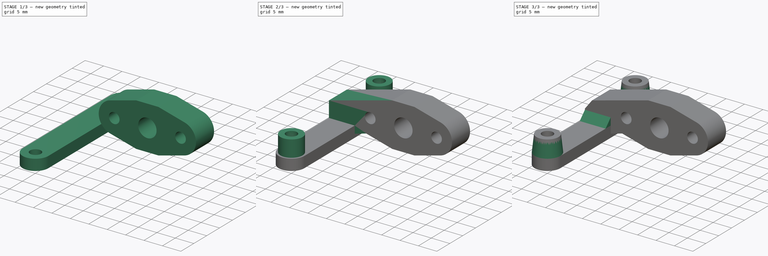
[diagram: build sequence overview — one tinted view per stage of 3, left to right]
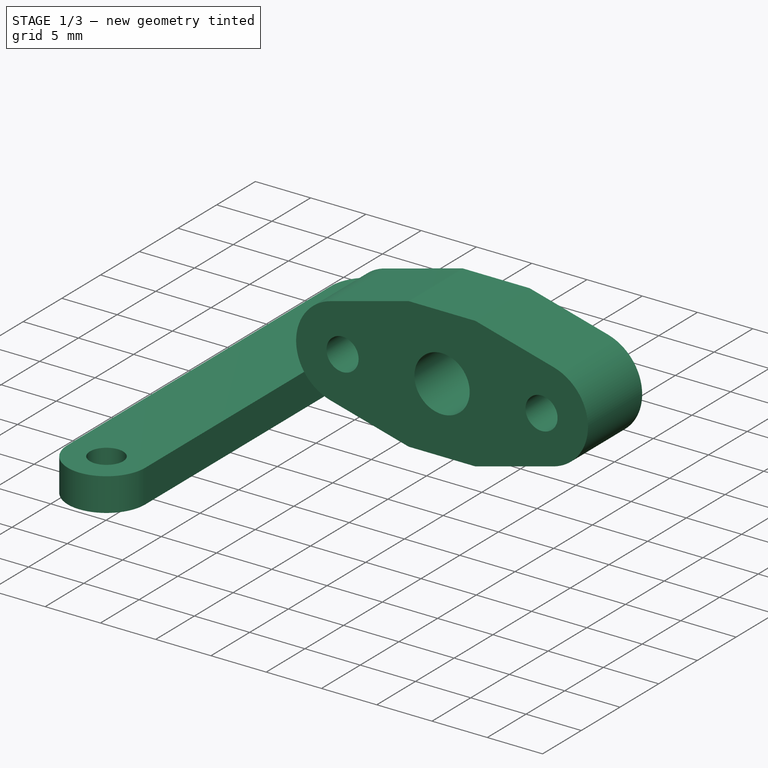
[diagram: stage 1 of 3 — iso view after this stage's code; geometry added in this stage tinted green]
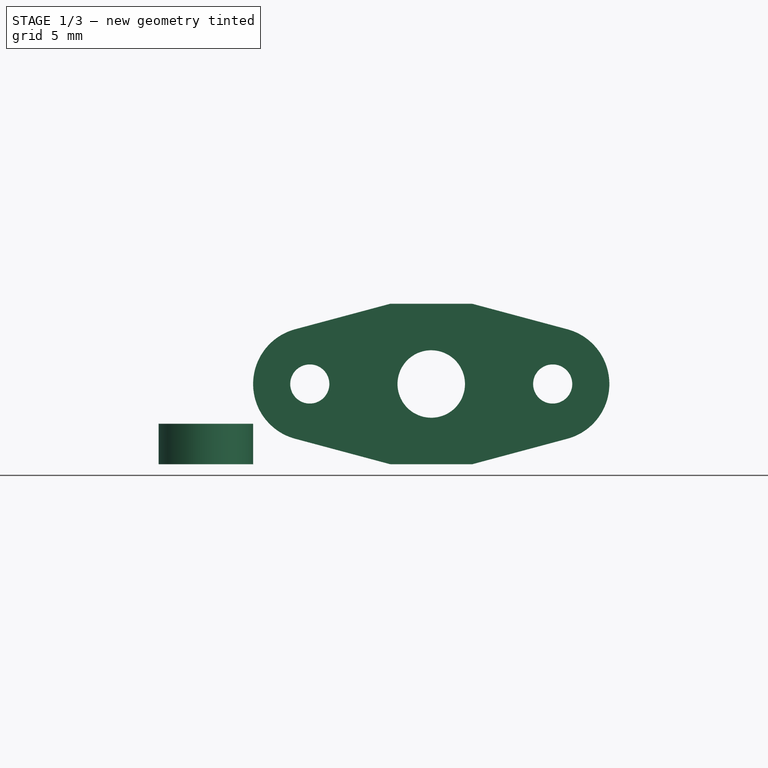
[diagram: stage 1 of 3 — front view after this stage's code; geometry added in this stage tinted green]
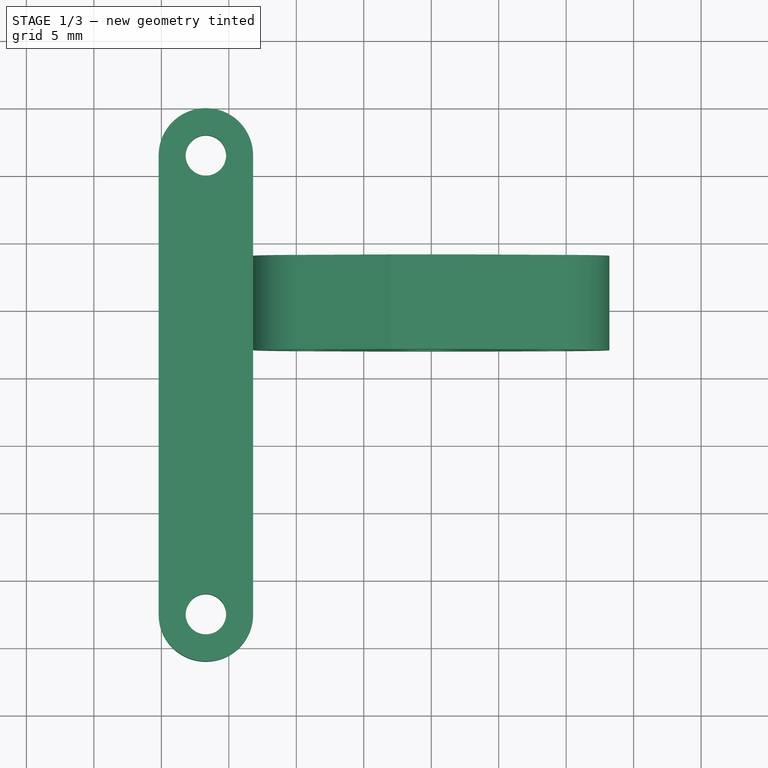
[diagram: stage 1 of 3 — top view after this stage's code; geometry added in this stage tinted green]
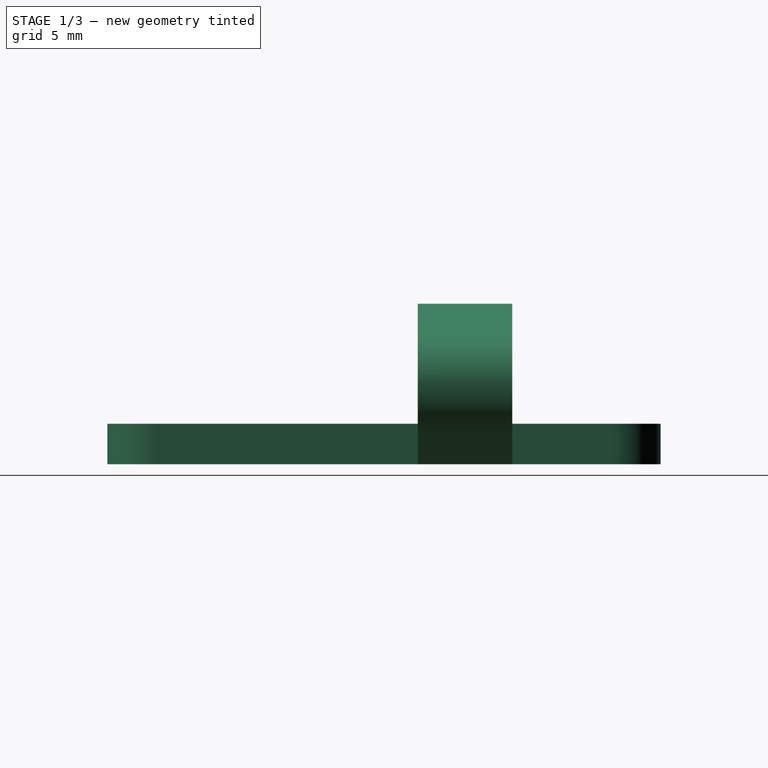
[diagram: stage 1 of 3 — right view after this stage's code; geometry added in this stage tinted green]
FCSTD DOCUMENT  (FreeCAD 2022.111R28429 (Git))
Label: BLTouch_Mount_2
License: All rights reserved
LicenseURL: http://en.wikipedia.org/wiki/All_rights_reserved
objects: Sketcher::SketchObject×4, PartDesign::Pad×4, PartDesign::Chamfer×2, PartDesign::Body×1
note: 23 computed .brp shape members not serialized (recipe doc carries the construction recipe); baked Part::Feature solids carry a one-line shape summary decoded from their .brp

FEATURE [Sketcher::SketchObject] Sketch
  FullyConstrained = true
  MapMode = 5
  Placement = pos=(0,0,0) rot=(1,0,0;1.5708rad)
  Support = -> [XZ_Plane]
  TreeRank = 0
  sketch-geometry (11):
    g0: Circle CenterX=-9 CenterY=0 CenterZ=0 NormalX=0 NormalY=0 NormalZ=1 AngleXU=0 Radius=1.45
    g1: Circle CenterX=0 CenterY=0 CenterZ=0 NormalX=0 NormalY=0 NormalZ=1 AngleXU=0 Radius=2.5
    g2: Circle CenterX=9 CenterY=0 CenterZ=0 NormalX=0 NormalY=0 NormalZ=1 AngleXU=0 Radius=1.45
    g3: ArcOfCircle CenterX=9 CenterY=0 CenterZ=0 NormalX=0 NormalY=0 NormalZ=1 AngleXU=0 Radius=4.2 StartAngle=4.97419 EndAngle=7.59218
    g4: ArcOfCircle CenterX=-9 CenterY=0 CenterZ=0 NormalX=0 NormalY=0 NormalZ=1 AngleXU=0 Radius=4.2 StartAngle=1.8326 EndAngle=4.45059
    g5: LineSegment StartX=-10.087 StartY=4.05689 StartZ=0 EndX=-3.02185 EndY=5.95 EndZ=0
    g6: LineSegment StartX=-3.02185 StartY=5.95 StartZ=0 EndX=3.02185 EndY=5.95 EndZ=0
    g7: LineSegment StartX=3.02185 StartY=5.95 StartZ=0 EndX=10.087 EndY=4.05689 EndZ=0
    g8: LineSegment StartX=-10.087 StartY=-4.05689 StartZ=0 EndX=-3.02185 EndY=-5.95 EndZ=0
    g9: LineSegment StartX=-3.02185 StartY=-5.95 StartZ=0 EndX=3.02185 EndY=-5.95 EndZ=0
    g10: LineSegment StartX=3.02185 StartY=-5.95 StartZ=0 EndX=10.087 EndY=-4.05689 EndZ=0
  constraints (25):
    c: Coincident(g1,g-1)
    c: Diameter(g0) = 2.9
    c: Equal(g0,g2)
    c: Diameter(g1) = 5
    c: DistanceX(g1,g2) = 9
    c: Symmetric(g2,g0,g-2)
    c: Coincident(g3,g2)
    c: Coincident(g4,g0)
    c: Diameter(g4) = 8.4
    c: Equal(g4,g3)
    c: Coincident(g7,g6)
    c: Coincident(g8,g4)
    c: Coincident(g9,g8)
    c: Horizontal(g9)
    c: Coincident(g10,g9)
    c: Tangent(g5,g4) = 1.5708
    c: Symmetric(g4,g4,g-1)
    c: Coincident(g5,g6)
    c: Symmetric(g5,g6,g-2)
    c: Symmetric(g5,g8,g-1)
    c: Angle(g5) = 0.261799
    c: Equal(g6,g9)
    c: DistanceY(g9,g6) = 11.9
    c: Tangent(g7,g3) = 1.5708
    c: Tangent(g10,g3) = -1.5708
FEATURE [PartDesign::Pad] Pad
  ClaimChildren = false
  Direction = (1,1,1)
  Fit = 0
  FitJoin = 0
  InnerFit = 0
  InnerFitJoin = 0
  InnerTaperAngle = 0
  InnerTaperAngleRev = 0
  Length = 3
  Length2 = 4
  Linearize = true
  NewSolid = false
  Placement = pos=(0,0,0) rot=(1,0,0;1.5708rad)
  Profile = -> Sketch
  Refine = true
  Suppress = false
  TreeRank = 0
  Type = 4
  _ProfileBasedVersion = 1
FEATURE [Sketcher::SketchObject] Sketch001
  FullyConstrained = false
  MapMode = 5
  Placement = pos=(0,0,-5.95) rot=(1,0,0;3.14159rad)
  Support = -> [Pad]
  TreeRank = 0
  sketch-geometry (7):
    g0: Circle CenterX=-16.7 CenterY=-11.5 CenterZ=0 NormalX=0 NormalY=0 NormalZ=1 AngleXU=0 Radius=1.5
    g1: Circle CenterX=-16.7 CenterY=22.5 CenterZ=0 NormalX=0 NormalY=0 NormalZ=1 AngleXU=0 Radius=1.5
    g2: GeomPoint [constr] X=-16.7 Y=-10 Z=0
    g3: ArcOfCircle CenterX=-16.7 CenterY=22.5 CenterZ=0 NormalX=0 NormalY=0 NormalZ=1 AngleXU=0 Radius=3.5 StartAngle=6.28319 EndAngle=9.42478
    g4: ArcOfCircle CenterX=-16.7 CenterY=-11.5 CenterZ=0 NormalX=0 NormalY=0 NormalZ=1 AngleXU=0 Radius=3.5 StartAngle=3.1416 EndAngle=6.28318
    g5: LineSegment StartX=-13.2 StartY=22.5 StartZ=0 EndX=-13.2 EndY=-11.5 EndZ=0
    g6: LineSegment StartX=-20.2 StartY=22.5 StartZ=0 EndX=-20.2 EndY=-11.5 EndZ=0
  constraints (18):
    c: Vertical(g1,g0)
    c: Diameter(g1) = 3
    c: Equal(g1,g0)
    c: PointOnObject(g2,g0)
    c: Vertical(g2,g0)
    c: DistanceY(g0,g1) = 34
    c: Coincident(g3,g1)
    c: Coincident(g4,g0)
    c: Diameter(g4) = 7
    c: Equal(g4,g3)
    c: Coincident(g5,g3)
    c: Coincident(g5,g4)
    c: Vertical(g5)
    c: Tangent(g5,g4)
    c: Coincident(g6,g4)
    c: Vertical(g6)
    c: Tangent(g6,g3) = -1.5708
    c: DistanceY(g2,g-1) = 10
FEATURE [PartDesign::Pad] Pad001
  BaseFeature = -> Pad
  ClaimChildren = false
  Direction = (1,1,1)
  Fit = 0
  FitJoin = 0
  InnerFit = 0
  InnerFitJoin = 0
  InnerTaperAngle = 0
  InnerTaperAngleRev = 0
  Length = 3
  Length2 = 100
  Linearize = true
  NewSolid = false
  Placement = pos=(0,0,0) rot=(1,0,0;1.5708rad)
  Profile = -> Sketch001
  Refine = true
  Reversed = true
  Suppress = false
  TreeRank = 0
  Type = 0
  _ProfileBasedVersion = 1
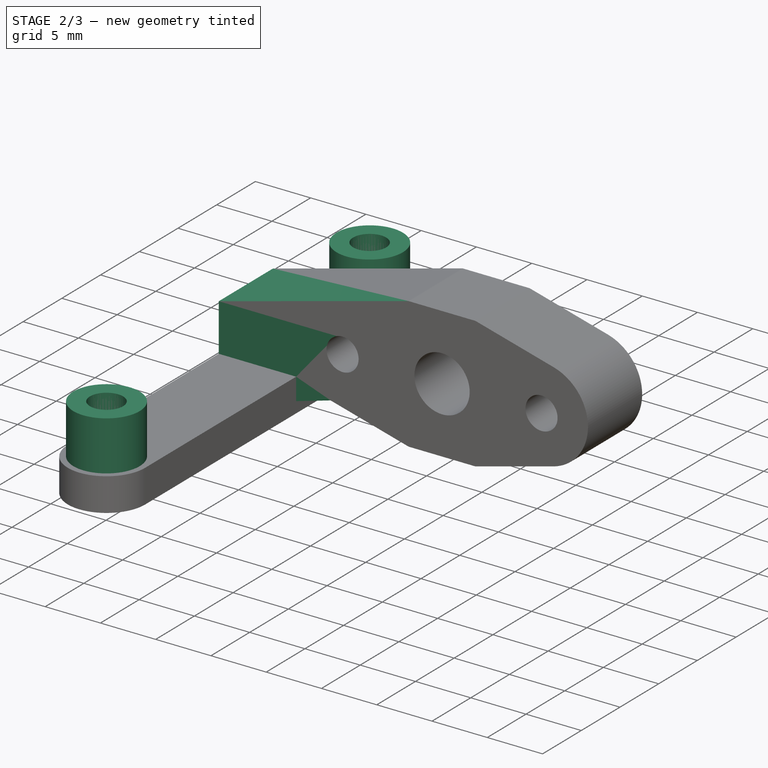
[diagram: stage 2 of 3 — iso view after this stage's code; geometry added in this stage tinted green]
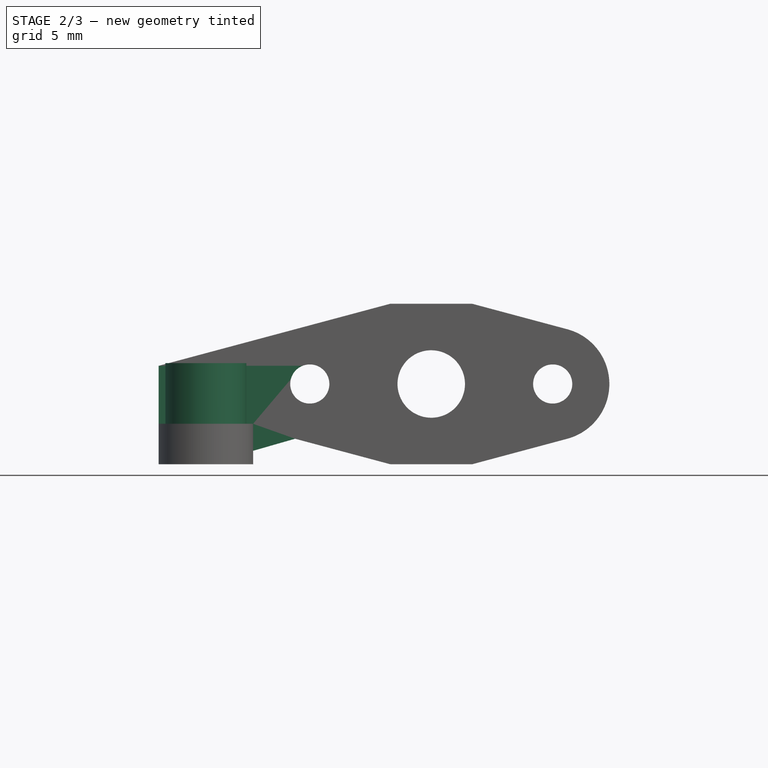
[diagram: stage 2 of 3 — front view after this stage's code; geometry added in this stage tinted green]
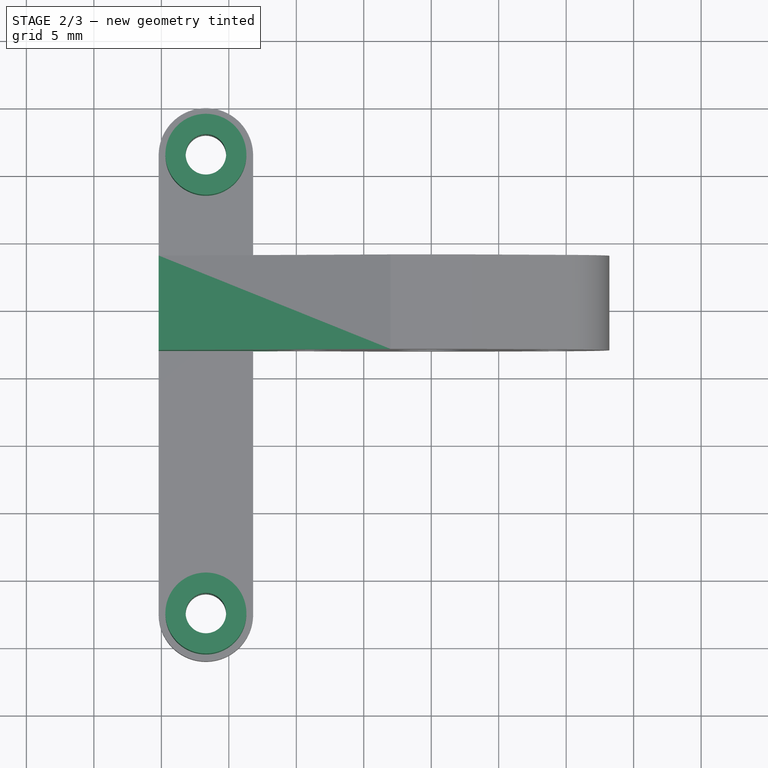
[diagram: stage 2 of 3 — top view after this stage's code; geometry added in this stage tinted green]
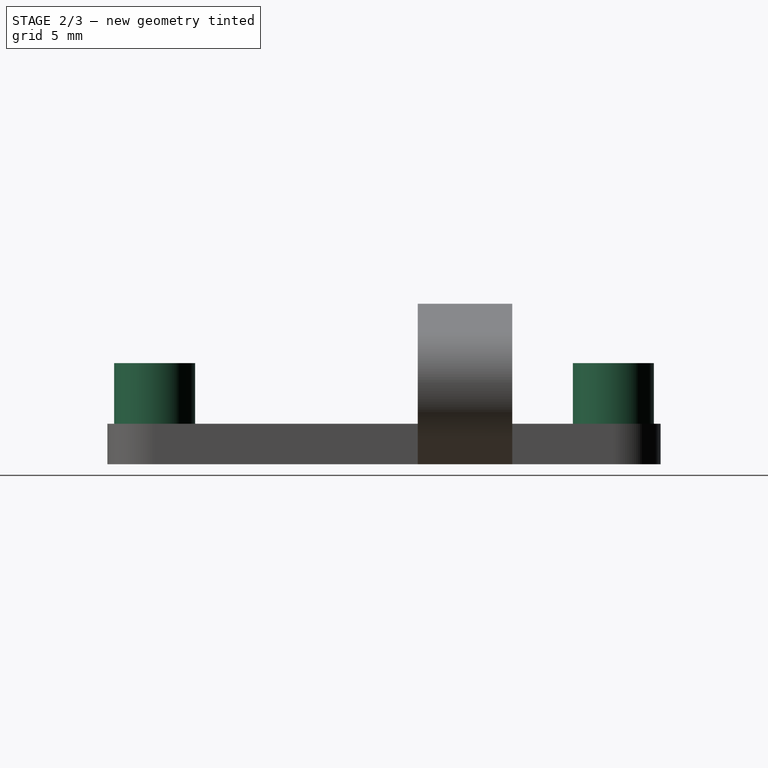
[diagram: stage 2 of 3 — right view after this stage's code; geometry added in this stage tinted green]
FEATURE [Sketcher::SketchObject] Sketch002
  ExternalGeometry = -> [Pad001]
  FullyConstrained = true
  MapMode = 5
  Placement = pos=(0,0,-2.95) rot=(0,0,1;3.14159rad)
  Support = -> [Pad001]
  TreeRank = 0
  sketch-geometry (4):
    g0: Circle CenterX=16.7 CenterY=22.5 CenterZ=0 NormalX=0 NormalY=0 NormalZ=1 AngleXU=0 Radius=3
    g1: Circle CenterX=16.7 CenterY=22.5 CenterZ=0 NormalX=0 NormalY=0 NormalZ=1 AngleXU=0 Radius=1.5
    g2: Circle CenterX=16.7 CenterY=-11.5 CenterZ=0 NormalX=0 NormalY=0 NormalZ=1 AngleXU=0 Radius=1.5
    g3: Circle CenterX=16.7 CenterY=-11.5 CenterZ=0 NormalX=0 NormalY=0 NormalZ=1 AngleXU=0 Radius=3
  constraints (8):
    c: Coincident(g0,g-3)
    c: Coincident(g1,g0)
    c: Equal(g2,g-4)
    c: Equal(g-4,g1)
    c: Diameter(g0) = 6
    c: Coincident(g3,g2)
    c: Equal(g3,g0)
    c: Coincident(g2,g-5)
FEATURE [PartDesign::Pad] Pad002
  BaseFeature = -> Pad001
  ClaimChildren = false
  Direction = (1,1,1)
  Fit = 0
  FitJoin = 0
  InnerFit = 0
  InnerFitJoin = 0
  InnerTaperAngle = 0
  InnerTaperAngleRev = 0
  Length = 4.5
  Length2 = 100
  Linearize = true
  NewSolid = false
  Placement = pos=(0,0,0) rot=(1,0,0;1.5708rad)
  Profile = -> Sketch002
  Refine = true
  Suppress = false
  TreeRank = 0
  Type = 0
  _ProfileBasedVersion = 1
FEATURE [Sketcher::SketchObject] Sketch003
  ExternalGeometry = -> [Pad002]
  FullyConstrained = true
  MapMode = 5
  Placement = pos=(0,-3,-7e-16) rot=(1,0,0;1.5708rad)
  Support = -> [Pad002]
  TreeRank = 0
  sketch-geometry (7):
    g0: LineSegment StartX=-20.2 StartY=1.34713 StartZ=0 EndX=-10.087 EndY=4.05689 EndZ=0
    g1: LineSegment StartX=-10.087 StartY=4.05689 StartZ=0 EndX=-12.4293 EndY=0 EndZ=0
    g2: LineSegment StartX=-12.4293 StartY=0 StartZ=0 EndX=-10.087 EndY=-4.05689 EndZ=0
    g3: GeomPoint [constr] X=-16.7 Y=-5.95 Z=0
    g4: LineSegment StartX=-16.7 StartY=-5.95 StartZ=0 EndX=-10.087 EndY=-4.05689 EndZ=0
    g5: LineSegment StartX=-16.7 StartY=-5.95 StartZ=0 EndX=-20.2 EndY=-5.95 EndZ=0
    g6: LineSegment StartX=-20.2 StartY=-5.95 StartZ=0 EndX=-20.2 EndY=1.34713 EndZ=0
  constraints (14):
    c: Coincident(g2,g1)
    c: Tangent(g0,g-4) = 1.5708
    c: Angle(g2) = -1.0472
    c: PointOnObject(g1,g-1)
    c: Coincident(g1,g0)
    c: Coincident(g4,g2)
    c: Coincident(g-4,g2)
    c: Coincident(g5,g4)
    c: Coincident(g5,g-6)
    c: Coincident(g6,g5)
    c: Vertical(g6)
    c: Coincident(g6,g0)
    c: Coincident(g4,g3)
    c: Symmetric(g-6,g5,g4)
FEATURE [PartDesign::Pad] Pad003
  BaseFeature = -> Pad002
  ClaimChildren = false
  Direction = (1,1,1)
  Fit = 0
  FitJoin = 0
  InnerFit = 0
  InnerFitJoin = 0
  InnerTaperAngle = 0
  InnerTaperAngleRev = 0
  Length = 7
  Length2 = 100
  Linearize = true
  NewSolid = false
  Placement = pos=(0,0,0) rot=(1,0,0;1.5708rad)
  Profile = -> Sketch003
  Refine = true
  Reversed = true
  Suppress = false
  TreeRank = 0
  Type = 0
  _ProfileBasedVersion = 1
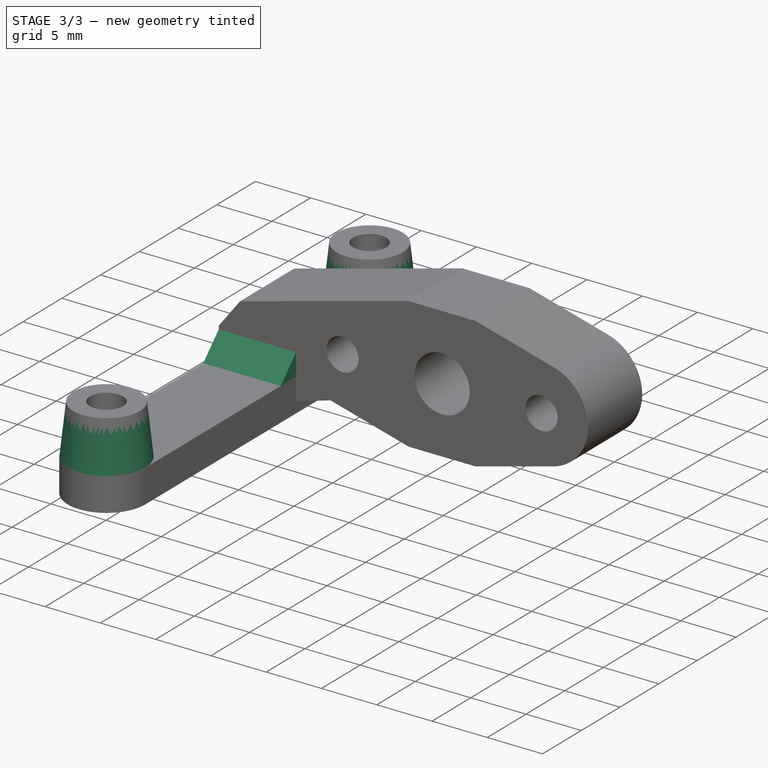
[diagram: stage 3 of 3 — iso view after this stage's code; geometry added in this stage tinted green]
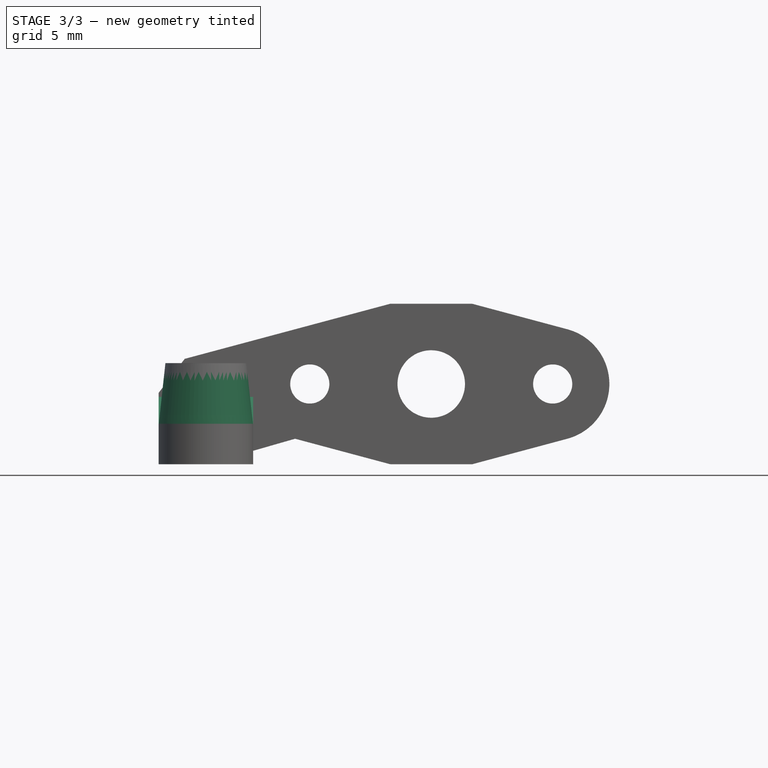
[diagram: stage 3 of 3 — front view after this stage's code; geometry added in this stage tinted green]
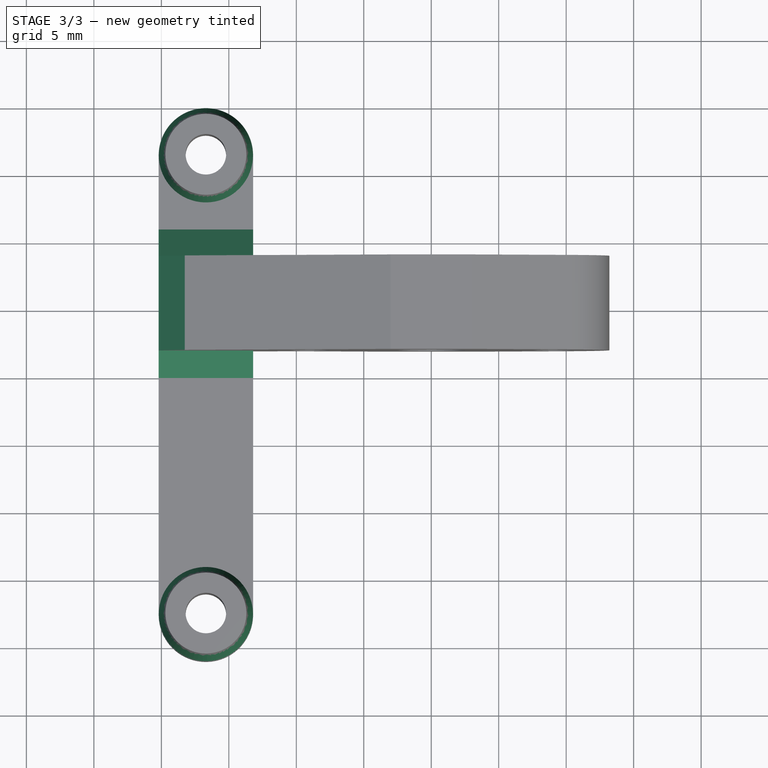
[diagram: stage 3 of 3 — top view after this stage's code; geometry added in this stage tinted green]
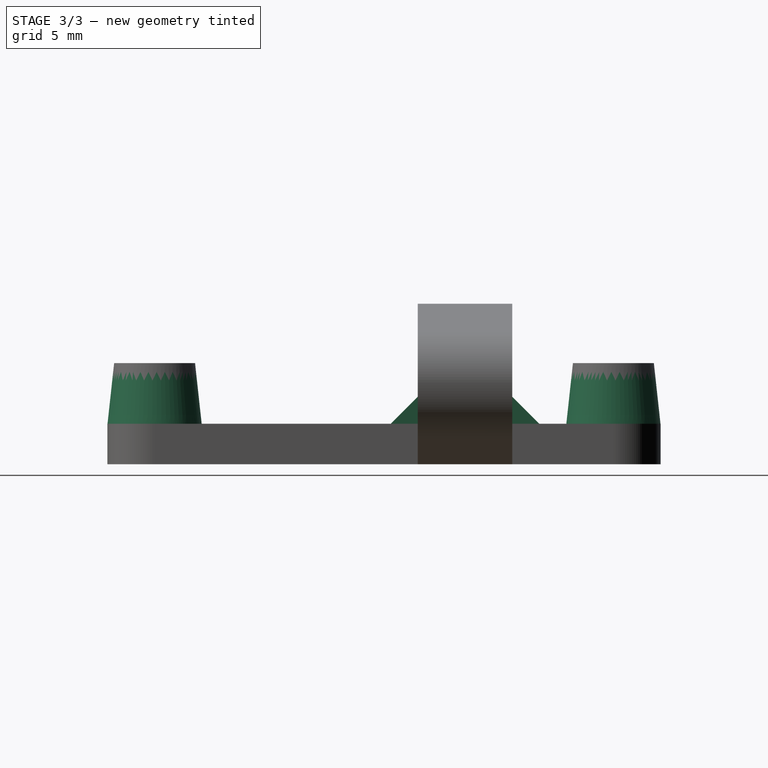
[diagram: stage 3 of 3 — right view after this stage's code; geometry added in this stage tinted green]
FEATURE [PartDesign::Chamfer] Chamfer
  Angle = 45
  Base = -> Pad003 [Edge13,Edge18,Edge55]
  BaseFeature = -> Pad003
  ChamferType = 0
  FlipDirection = false
  NewSolid = false
  Placement = pos=(0,0,0) rot=(1,0,0;1.5708rad)
  Refine = true
  Size = 2
  Size2 = 1
  SupportTransform = false
  Suppress = false
  TreeRank = 0
FEATURE [PartDesign::Chamfer] Chamfer001
  Angle = 80
  Base = -> Chamfer [Edge44,Edge16]
  BaseFeature = -> Chamfer
  ChamferType = 1
  FlipDirection = false
  NewSolid = false
  Placement = pos=(0,0,0) rot=(1,0,0;1.5708rad)
  Refine = true
  Size = 0.49
  Size2 = 4.49
  SupportTransform = false
  Suppress = false
  TreeRank = 0
FEATURE [PartDesign::Body] Body  label="BLTouch_Mount"
  AutoGroupSolids = false
  ExportMode = 0
  Group = -> [Sketch,Pad,Sketch001,Pad001,Sketch002,Pad002,Sketch003,Pad003,Chamfer,Chamfer001]
  Origin = -> Origin
  Tip = -> Chamfer001
  TreeRank = 0
  _ExportChildren = -> [Pad,Pad001,Pad002,Pad003,Chamfer,Chamfer001]
  _GroupVersion = 1
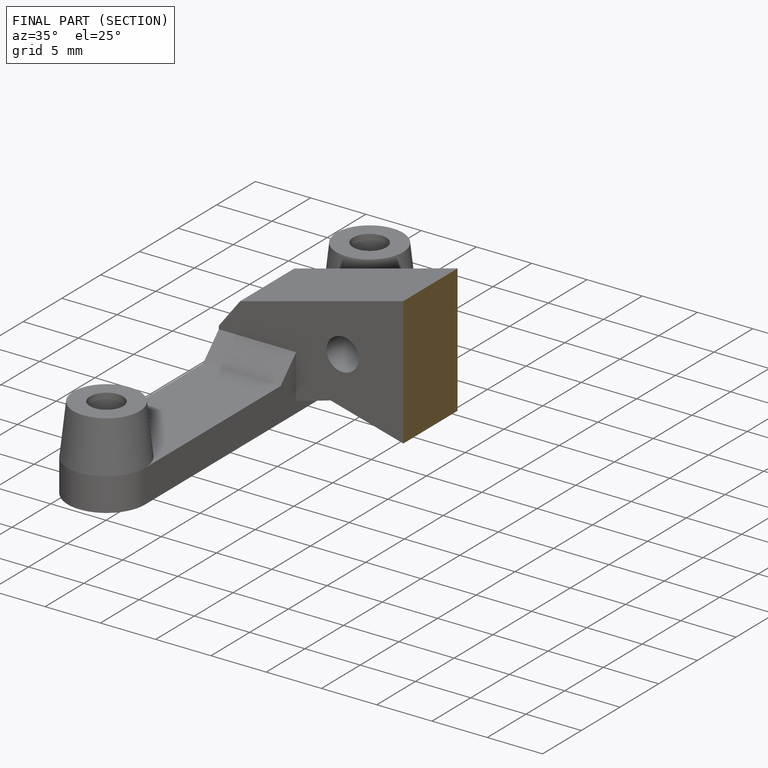
[diagram: finished part — half-section view (interior)]
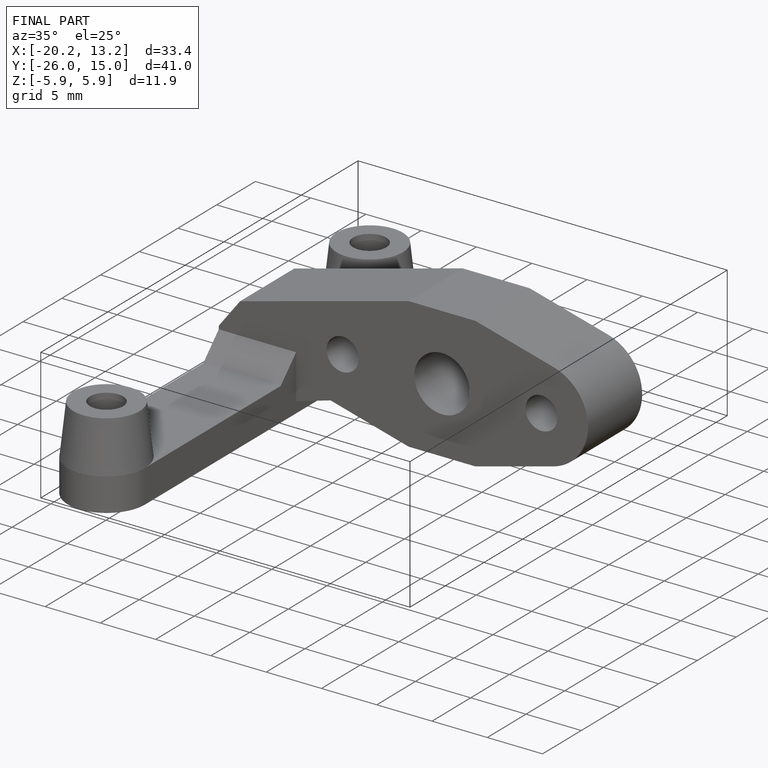
[diagram: finished part — iso view with bounding-box wireframe]
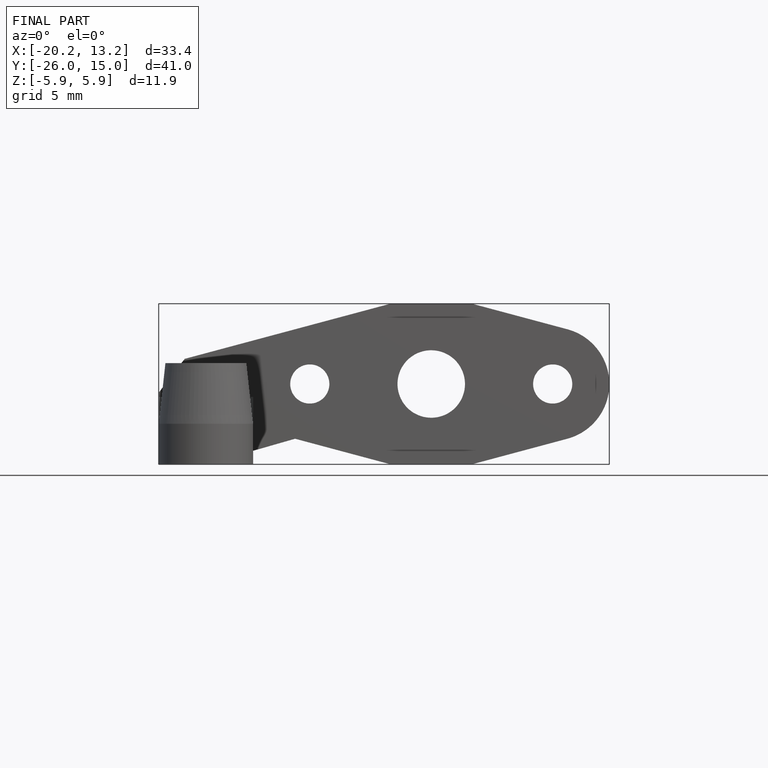
[diagram: finished part — front view with bounding-box wireframe]
